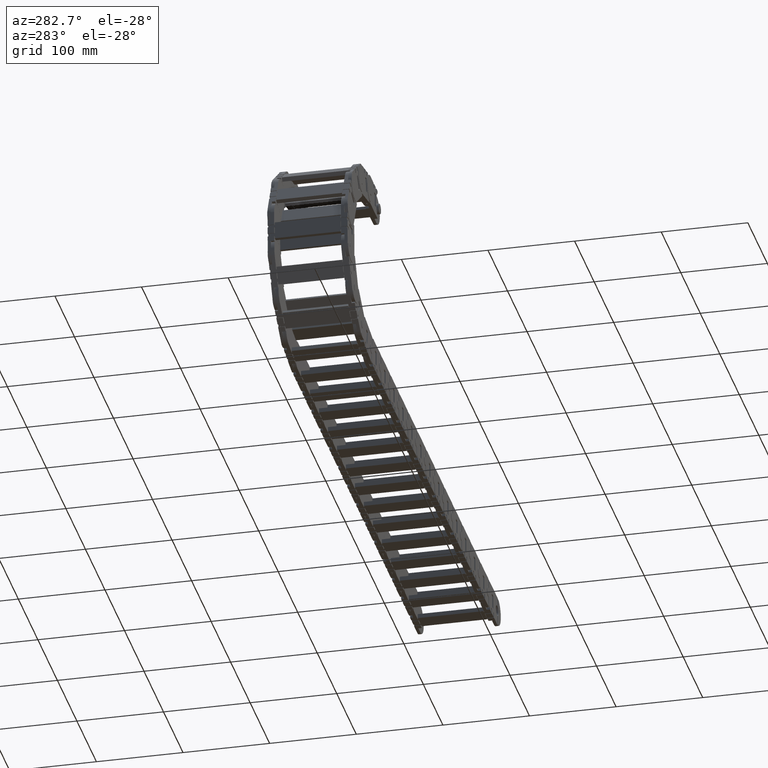
[diagram: clean part render]
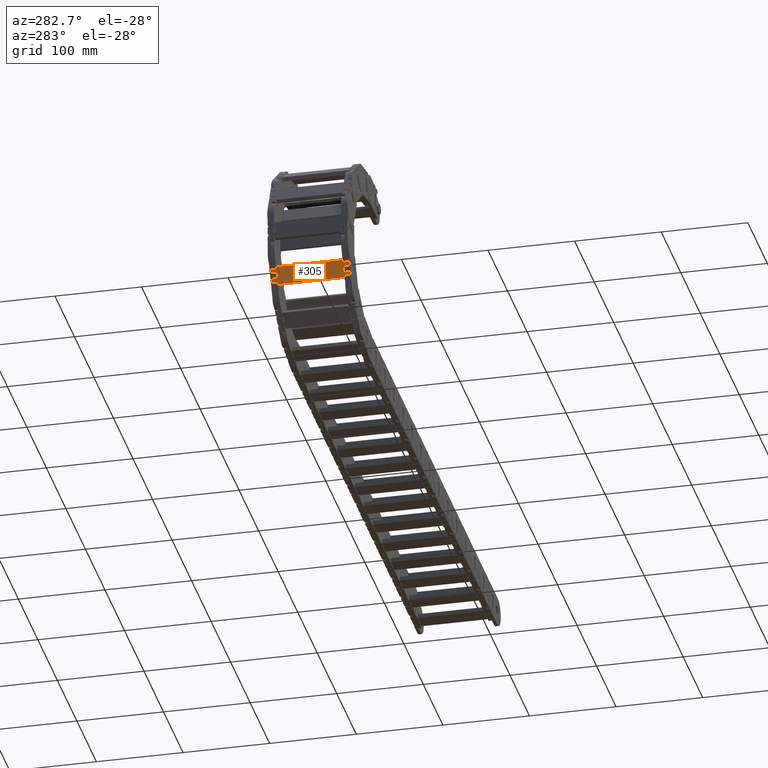
[diagram: same view with one face highlighted and labeled with its STEP entity id]
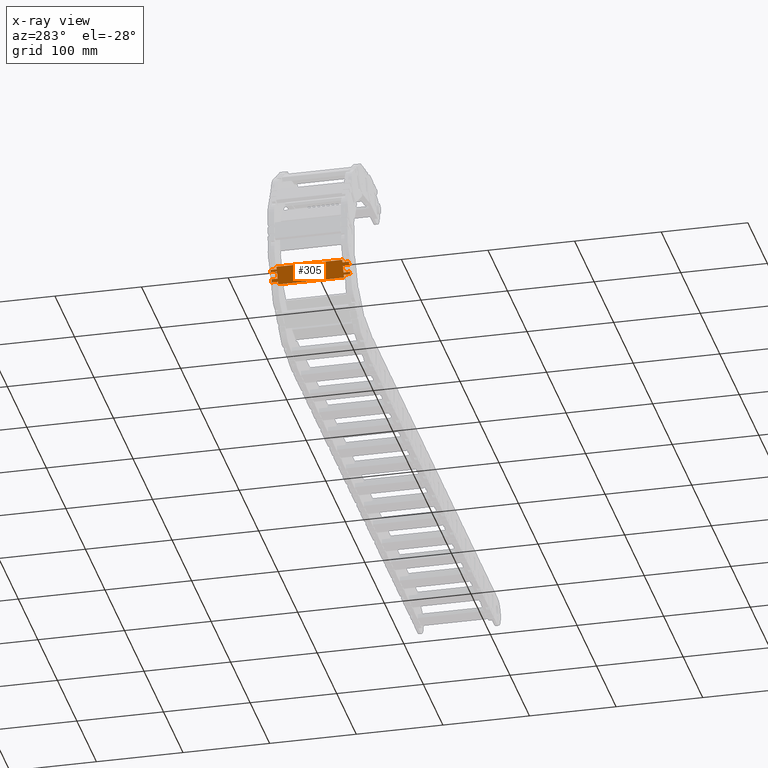
[diagram: x-ray of the same camera — body ghosted, the highlighted face saturated]
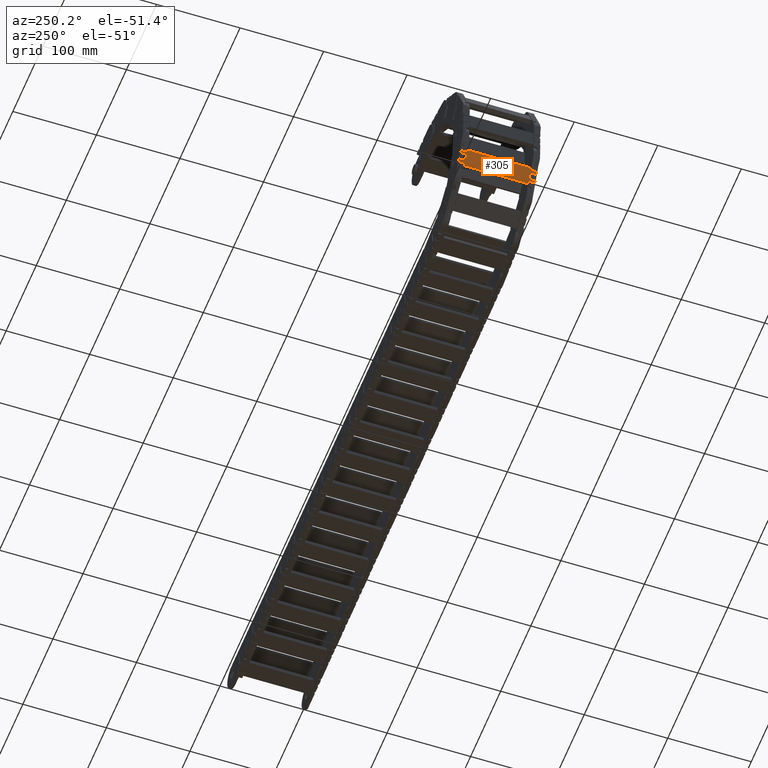
[diagram: same view with one face highlighted and labeled with its STEP entity id]
A machine part, auxiliary view. The second image highlights one B-rep face of the part: STEP entity #305.
The next image is the same camera in x-ray: the body ghosted, the highlighted face saturated — about 0% of this face is hidden behind the body in this view.
A second angle (auxiliary view) of the same face is appended — the face is thin or edge-on in the first view.
In plain terms, the highlighted planar face has unit normal (-0.8851, 0, -0.4655).
Its self-contained STEP definition (entity closure, byte-faithful):
#81 = DIRECTION ( 'NONE',  ( 0.000000000000000000, 1.000000000000000000, 0.000000000000000000 ) ) ;
#305 = ADVANCED_FACE ( 'NONE', ( #50138 ), #13567, .T. ) ;
#945 = DIRECTION ( 'NONE',  ( 0.000000000000000000, 1.000000000000000000, 0.000000000000000000 ) ) ;
#1283 = EDGE_CURVE ( 'NONE', #39285, #57836, #68592, .T. ) ;
#1525 = VECTOR ( 'NONE', #9764, 39.37007874015748143 ) ;
#1792 = EDGE_CURVE ( 'NONE', #16919, #51446, #66642, .T. ) ;
#1840 = DIRECTION ( 'NONE',  ( 0.4654586112737118531, 0.000000000000000000, -0.8850696476499166909 ) ) ;
#2094 = LINE ( 'NONE', #62761, #32034 ) ;
#2328 = ORIENTED_EDGE ( 'NONE', *, *, #34212, .F. ) ;
#2772 = CARTESIAN_POINT ( 'NONE',  ( -29.44358205679968421, 3.011732283464566784, 1.489434713729618220 ) ) ;
#3285 = CARTESIAN_POINT ( 'NONE',  ( -29.49674329425267771, 3.307047244094488470, 1.590520817974988121 ) ) ;
#3835 = VERTEX_POINT ( 'NONE', #66382 ) ;
#3862 = VERTEX_POINT ( 'NONE', #72625 ) ;
#4982 = LINE ( 'NONE', #35712, #55523 ) ;
#6709 = ORIENTED_EDGE ( 'NONE', *, *, #12981, .F. ) ;
#6792 = CARTESIAN_POINT ( 'NONE',  ( -29.70564991506055463, 3.307047244094488470, 1.987756801565893738 ) ) ;
#7458 = LINE ( 'NONE', #60757, #20504 ) ;
#7712 = CARTESIAN_POINT ( 'NONE',  ( -29.56267715580236555, 3.011732283464566784, 1.715894069638153496 ) ) ;
#8364 = EDGE_CURVE ( 'NONE', #52140, #40311, #55026, .T. ) ;
#8591 = CARTESIAN_POINT ( 'NONE',  ( -29.69098980131964893, 0.01968503937007873988, 1.959880592191094673 ) ) ;
#9764 = DIRECTION ( 'NONE',  ( 0.000000000000000000, 1.000000000000000000, 0.000000000000000000 ) ) ;
#10560 = ORIENTED_EDGE ( 'NONE', *, *, #27794, .F. ) ;
#10724 = AXIS2_PLACEMENT_3D ( 'NONE', #67637, #61795, #61416 ) ;
#10998 = LINE ( 'NONE', #71688, #20719 ) ;
#11522 = LINE ( 'NONE', #47701, #69723 ) ;
#12861 = VECTOR ( 'NONE', #51941, 39.37007874015747433 ) ;
#12981 = EDGE_CURVE ( 'NONE', #26644, #23307, #18680, .T. ) ;
#13049 = DIRECTION ( 'NONE',  ( -0.4654586112737118531, 0.000000000000000000, 0.8850696476499166909 ) ) ;
#13517 = CARTESIAN_POINT ( 'NONE',  ( -29.54801704206145985, 0.01968503937007873988, 1.688017860263350434 ) ) ;
#13567 = PLANE ( 'NONE',  #10724 ) ;
#13966 = DIRECTION ( 'NONE',  ( 0.000000000000000000, -1.000000000000000000, 0.000000000000000000 ) ) ;
#14409 = CARTESIAN_POINT ( 'NONE',  ( -29.49674329425267771, 3.011732283464566784, 1.590520817974988121 ) ) ;
#14676 = DIRECTION ( 'NONE',  ( 0.4654586112737118531, 0.000000000000000000, -0.8850696476499166909 ) ) ;
#14697 = LINE ( 'NONE', #31440, #59632 ) ;
#14943 = CARTESIAN_POINT ( 'NONE',  ( -29.56267715580236555, 3.011732283464566784, 1.715894069638153496 ) ) ;
#14962 = ORIENTED_EDGE ( 'NONE', *, *, #49721, .F. ) ;
#15310 = DIRECTION ( 'NONE',  ( 0.000000000000000000, -1.000000000000000000, 0.000000000000000000 ) ) ;
#15690 = CARTESIAN_POINT ( 'NONE',  ( -29.75692366286937585, 3.307047244094488470, 2.085253843854259603 ) ) ;
#15715 = EDGE_LOOP ( 'NONE', ( #41690, #61426, #60142, #25972, #52352, #43200, #51546, #45567, #17569, #35364, #65792, #2328, #10560, #31830, #51904, #32156, #32473, #14962, #42980, #6709 ) ) ;
#16265 = VECTOR ( 'NONE', #65735, 39.37007874015747433 ) ;
#16919 = VERTEX_POINT ( 'NONE', #15690 ) ;
#17569 = ORIENTED_EDGE ( 'NONE', *, *, #1283, .F. ) ;
#18680 = LINE ( 'NONE', #42001, #16265 ) ;
#19442 = LINE ( 'NONE', #55195, #37560 ) ;
#20257 = VERTEX_POINT ( 'NONE', #38200 ) ;
#20504 = VECTOR ( 'NONE', #23566, 39.37007874015748143 ) ;
#20719 = VECTOR ( 'NONE', #81, 39.37007874015748143 ) ;
#21002 = VECTOR ( 'NONE', #58644, 39.37007874015747433 ) ;
#22387 = CARTESIAN_POINT ( 'NONE',  ( -29.49674329425267771, 3.011732283464566784, 1.590520817974988121 ) ) ;
#22517 = EDGE_CURVE ( 'NONE', #62150, #68441, #10998, .T. ) ;
#22649 = DIRECTION ( 'NONE',  ( 0.4654586112737118531, 0.000000000000000000, -0.8850696476499166909 ) ) ;
#23307 = VERTEX_POINT ( 'NONE', #57031 ) ;
#23365 = CARTESIAN_POINT ( 'NONE',  ( -29.81008490032232672, 3.011732283464566784, 2.186339948099630170 ) ) ;
#23566 = DIRECTION ( 'NONE',  ( 0.000000000000000000, -1.000000000000000000, 0.000000000000000000 ) ) ;
#23652 = VERTEX_POINT ( 'NONE', #28155 ) ;
#24657 = VERTEX_POINT ( 'NONE', #67406 ) ;
#25366 = EDGE_CURVE ( 'NONE', #24657, #75987, #14697, .T. ) ;
#25843 = DIRECTION ( 'NONE',  ( 0.4654586112737118531, 0.000000000000000000, -0.8850696476499166909 ) ) ;
#25856 = CARTESIAN_POINT ( 'NONE',  ( -29.69098980131964893, 0.01968503937007873988, 1.959880592191094673 ) ) ;
#25972 = ORIENTED_EDGE ( 'NONE', *, *, #65579, .F. ) ;
#25987 = EDGE_CURVE ( 'NONE', #57836, #24657, #52966, .T. ) ;
#26632 = LINE ( 'NONE', #14943, #69297 ) ;
#26644 = VERTEX_POINT ( 'NONE', #7712 ) ;
#27794 = EDGE_CURVE ( 'NONE', #61755, #33960, #19442, .T. ) ;
#27847 = LINE ( 'NONE', #22387, #12861 ) ;
#28155 = CARTESIAN_POINT ( 'NONE',  ( -29.56267715580236555, 3.307047244094488470, 1.715894069638153496 ) ) ;
#28201 = VECTOR ( 'NONE', #1840, 39.37007874015747433 ) ;
#31417 = LINE ( 'NONE', #13517, #45873 ) ;
#31440 = CARTESIAN_POINT ( 'NONE',  ( -29.49674329425267771, 0.01968503937007873988, 1.590520817974988121 ) ) ;
#31830 = ORIENTED_EDGE ( 'NONE', *, *, #58309, .F. ) ;
#32034 = VECTOR ( 'NONE', #25843, 39.37007874015747433 ) ;
#32156 = ORIENTED_EDGE ( 'NONE', *, *, #33688, .F. ) ;
#32328 = VECTOR ( 'NONE', #22649, 39.37007874015747433 ) ;
#32473 = ORIENTED_EDGE ( 'NONE', *, *, #1792, .F. ) ;
#33688 = EDGE_CURVE ( 'NONE', #51446, #3835, #76679, .T. ) ;
#33960 = VERTEX_POINT ( 'NONE', #38883 ) ;
#34203 = EDGE_CURVE ( 'NONE', #20257, #54014, #4982, .T. ) ;
#34212 = EDGE_CURVE ( 'NONE', #33960, #52140, #43873, .T. ) ;
#34666 = CARTESIAN_POINT ( 'NONE',  ( -29.75692366286937585, 0.01968503937007873988, 2.085253843854259603 ) ) ;
#35364 = ORIENTED_EDGE ( 'NONE', *, *, #73261, .F. ) ;
#35582 = CARTESIAN_POINT ( 'NONE',  ( -29.69098980131964893, -0.2756299212598425363, 1.959880592191094673 ) ) ;
#35712 = CARTESIAN_POINT ( 'NONE',  ( -29.44358205679968421, 3.011732283464566784, 1.489434713729618220 ) ) ;
#37133 = LINE ( 'NONE', #54252, #63653 ) ;
#37560 = VECTOR ( 'NONE', #13966, 39.37007874015748143 ) ;
#38200 = CARTESIAN_POINT ( 'NONE',  ( -29.44358205679968421, 0.01968503937007873988, 1.489434713729618220 ) ) ;
#38883 = CARTESIAN_POINT ( 'NONE',  ( -29.75692366286937585, -0.2756299212598425363, 2.085253843854259603 ) ) ;
#39285 = VERTEX_POINT ( 'NONE', #61818 ) ;
#40311 = VERTEX_POINT ( 'NONE', #8591 ) ;
#41027 = LINE ( 'NONE', #6792, #65009 ) ;
#41690 = ORIENTED_EDGE ( 'NONE', *, *, #72255, .F. ) ;
#42001 = CARTESIAN_POINT ( 'NONE',  ( -29.70564991506055463, 3.011732283464566784, 1.987756801565893738 ) ) ;
#42980 = ORIENTED_EDGE ( 'NONE', *, *, #65750, .F. ) ;
#43083 = CARTESIAN_POINT ( 'NONE',  ( -29.69098980131964893, -0.2756299212598425363, 1.959880592191094673 ) ) ;
#43200 = ORIENTED_EDGE ( 'NONE', *, *, #46195, .F. ) ;
#43413 = CARTESIAN_POINT ( 'NONE',  ( -29.49674329425267771, 0.01968503937007873988, 1.590520817974988121 ) ) ;
#43873 = LINE ( 'NONE', #43083, #28201 ) ;
#45567 = ORIENTED_EDGE ( 'NONE', *, *, #25987, .F. ) ;
#45644 = CARTESIAN_POINT ( 'NONE',  ( -29.54801704206145985, -0.2756299212598425363, 1.688017860263350434 ) ) ;
#45873 = VECTOR ( 'NONE', #14676, 39.37007874015747433 ) ;
#46195 = EDGE_CURVE ( 'NONE', #75987, #20257, #37133, .T. ) ;
#46714 = VECTOR ( 'NONE', #15310, 39.37007874015748143 ) ;
#47422 = VERTEX_POINT ( 'NONE', #51488 ) ;
#47532 = CARTESIAN_POINT ( 'NONE',  ( -29.75692366286937585, 3.011732283464566784, 2.085253843854259603 ) ) ;
#47701 = CARTESIAN_POINT ( 'NONE',  ( -29.75692366286937585, 3.307047244094488470, 2.085253843854259603 ) ) ;
#48417 = DIRECTION ( 'NONE',  ( 0.4654586112737118531, 0.000000000000000000, -0.8850696476499166909 ) ) ;
#49712 = DIRECTION ( 'NONE',  ( 0.000000000000000000, 1.000000000000000000, 0.000000000000000000 ) ) ;
#49721 = EDGE_CURVE ( 'NONE', #47422, #16919, #11522, .T. ) ;
#50138 = FACE_OUTER_BOUND ( 'NONE', #15715, .T. ) ;
#50168 = CARTESIAN_POINT ( 'NONE',  ( -29.54801704206145985, -0.2756299212598425363, 1.688017860263350434 ) ) ;
#51446 = VERTEX_POINT ( 'NONE', #47532 ) ;
#51488 = CARTESIAN_POINT ( 'NONE',  ( -29.70564991506055463, 3.307047244094488470, 1.987756801565893738 ) ) ;
#51546 = ORIENTED_EDGE ( 'NONE', *, *, #25366, .F. ) ;
#51904 = ORIENTED_EDGE ( 'NONE', *, *, #67058, .F. ) ;
#51941 = DIRECTION ( 'NONE',  ( -0.4654586112737118531, 0.000000000000000000, 0.8850696476499166909 ) ) ;
#52140 = VERTEX_POINT ( 'NONE', #35582 ) ;
#52352 = ORIENTED_EDGE ( 'NONE', *, *, #34203, .F. ) ;
#52933 = VECTOR ( 'NONE', #59261, 39.37007874015748143 ) ;
#52966 = LINE ( 'NONE', #70104, #32328 ) ;
#54014 = VERTEX_POINT ( 'NONE', #2772 ) ;
#54252 = CARTESIAN_POINT ( 'NONE',  ( -29.44358205679968421, 0.01968503937007873988, 1.489434713729618220 ) ) ;
#54362 = DIRECTION ( 'NONE',  ( 0.000000000000000000, 1.000000000000000000, 0.000000000000000000 ) ) ;
#55026 = LINE ( 'NONE', #25856, #1525 ) ;
#55195 = CARTESIAN_POINT ( 'NONE',  ( -29.75692366286937585, -0.2756299212598425363, 2.085253843854259603 ) ) ;
#55523 = VECTOR ( 'NONE', #54362, 39.37007874015748143 ) ;
#57031 = CARTESIAN_POINT ( 'NONE',  ( -29.70564991506055463, 3.011732283464566784, 1.987756801565893738 ) ) ;
#57836 = VERTEX_POINT ( 'NONE', #50168 ) ;
#58309 = EDGE_CURVE ( 'NONE', #3862, #61755, #2094, .T. ) ;
#58644 = DIRECTION ( 'NONE',  ( -0.4654586112737118531, 0.000000000000000000, 0.8850696476499166909 ) ) ;
#59261 = DIRECTION ( 'NONE',  ( 0.000000000000000000, -1.000000000000000000, 0.000000000000000000 ) ) ;
#59304 = EDGE_CURVE ( 'NONE', #68441, #23652, #65642, .T. ) ;
#59408 = CARTESIAN_POINT ( 'NONE',  ( -29.56267715580236555, 3.307047244094488470, 1.715894069638153496 ) ) ;
#59517 = DIRECTION ( 'NONE',  ( -0.4654586112737118531, 0.000000000000000000, 0.8850696476499166909 ) ) ;
#59632 = VECTOR ( 'NONE', #49712, 39.37007874015748143 ) ;
#60142 = ORIENTED_EDGE ( 'NONE', *, *, #22517, .F. ) ;
#60404 = CARTESIAN_POINT ( 'NONE',  ( -29.75692366286937585, 3.011732283464566784, 2.085253843854259603 ) ) ;
#60757 = CARTESIAN_POINT ( 'NONE',  ( -29.81008490032232672, 0.01968503937007873988, 2.186339948099630170 ) ) ;
#61416 = DIRECTION ( 'NONE',  ( -0.4654586112737117976, 0.000000000000000000, 0.8850696476499165799 ) ) ;
#61426 = ORIENTED_EDGE ( 'NONE', *, *, #59304, .F. ) ;
#61639 = DIRECTION ( 'NONE',  ( 0.000000000000000000, -1.000000000000000000, 0.000000000000000000 ) ) ;
#61755 = VERTEX_POINT ( 'NONE', #34666 ) ;
#61795 = DIRECTION ( 'NONE',  ( -0.8850696476499166909, 0.000000000000000000, -0.4654586112737118531 ) ) ;
#61818 = CARTESIAN_POINT ( 'NONE',  ( -29.54801704206145985, 0.01968503937007873988, 1.688017860263350434 ) ) ;
#62150 = VERTEX_POINT ( 'NONE', #14409 ) ;
#62761 = CARTESIAN_POINT ( 'NONE',  ( -29.75692366286937585, 0.01968503937007873988, 2.085253843854259603 ) ) ;
#63653 = VECTOR ( 'NONE', #48417, 39.37007874015747433 ) ;
#65009 = VECTOR ( 'NONE', #945, 39.37007874015748143 ) ;
#65579 = EDGE_CURVE ( 'NONE', #54014, #62150, #27847, .T. ) ;
#65642 = LINE ( 'NONE', #59408, #21002 ) ;
#65735 = DIRECTION ( 'NONE',  ( -0.4654586112737118531, 0.000000000000000000, 0.8850696476499166909 ) ) ;
#65750 = EDGE_CURVE ( 'NONE', #23307, #47422, #41027, .T. ) ;
#65792 = ORIENTED_EDGE ( 'NONE', *, *, #8364, .F. ) ;
#66382 = CARTESIAN_POINT ( 'NONE',  ( -29.81008490032232672, 3.011732283464566784, 2.186339948099630170 ) ) ;
#66642 = LINE ( 'NONE', #60404, #52933 ) ;
#67058 = EDGE_CURVE ( 'NONE', #3835, #3862, #7458, .T. ) ;
#67406 = CARTESIAN_POINT ( 'NONE',  ( -29.49674329425267771, -0.2756299212598425363, 1.590520817974988121 ) ) ;
#67637 = CARTESIAN_POINT ( 'NONE',  ( -29.62683347856102500, 1.515708661417322745, 1.837887330914621975 ) ) ;
#68441 = VERTEX_POINT ( 'NONE', #3285 ) ;
#68592 = LINE ( 'NONE', #45644, #46714 ) ;
#69297 = VECTOR ( 'NONE', #61639, 39.37007874015748143 ) ;
#69723 = VECTOR ( 'NONE', #13049, 39.37007874015747433 ) ;
#70104 = CARTESIAN_POINT ( 'NONE',  ( -29.49674329425267771, -0.2756299212598425363, 1.590520817974988121 ) ) ;
#71643 = VECTOR ( 'NONE', #59517, 39.37007874015747433 ) ;
#71688 = CARTESIAN_POINT ( 'NONE',  ( -29.49674329425267771, 3.307047244094488470, 1.590520817974988121 ) ) ;
#72255 = EDGE_CURVE ( 'NONE', #23652, #26644, #26632, .T. ) ;
#72625 = CARTESIAN_POINT ( 'NONE',  ( -29.81008490032232672, 0.01968503937007873988, 2.186339948099630170 ) ) ;
#73261 = EDGE_CURVE ( 'NONE', #40311, #39285, #31417, .T. ) ;
#75987 = VERTEX_POINT ( 'NONE', #43413 ) ;
#76679 = LINE ( 'NONE', #23365, #71643 ) ;